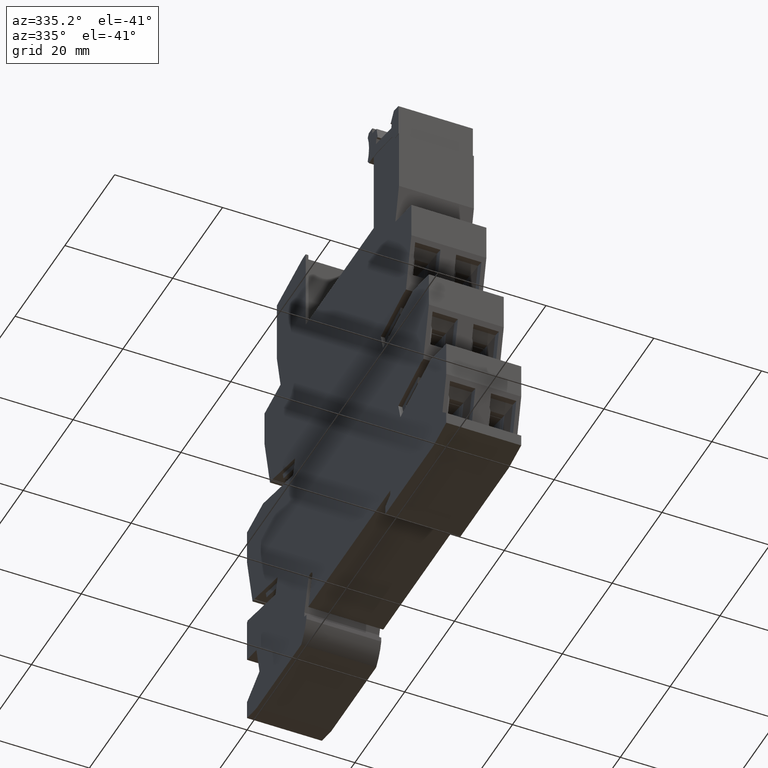
[diagram: clean part render]
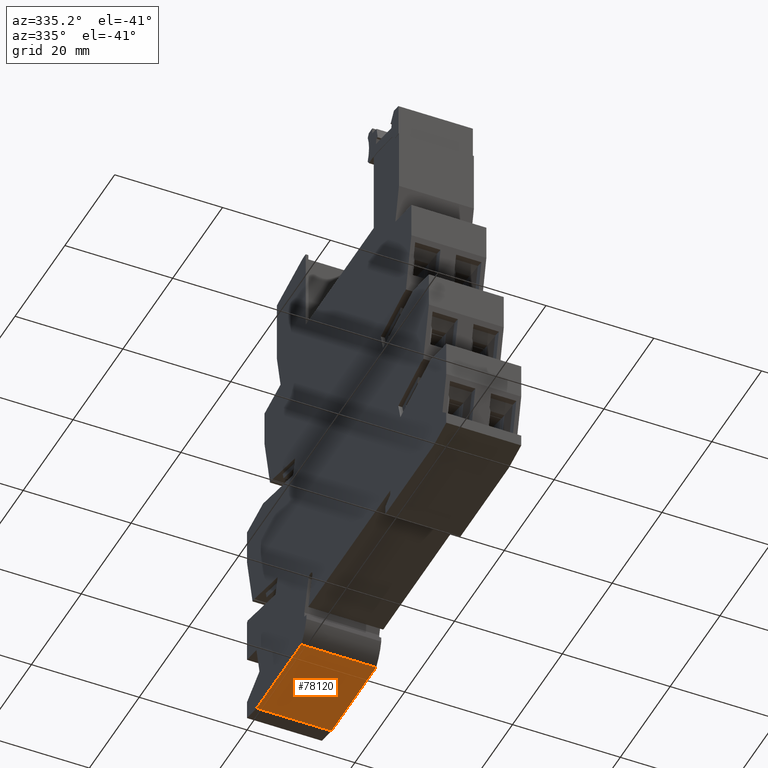
[diagram: same view with one face highlighted and labeled with its STEP entity id]
A machine part, auxiliary view. The second image highlights one B-rep face of the part: STEP entity #78120.
In plain terms, the highlighted planar face has unit normal (0, -0, 1).
Its self-contained STEP definition (entity closure, byte-faithful):
#4850=CARTESIAN_POINT('',(-34.8928400000569,-8.99999999999097,
-14.7000000000029));
#4860=VERTEX_POINT('',#4850);
#4890=CARTESIAN_POINT('',(13.9023606813607,-8.99999999999405,
-14.7000000000029));
#4900=DIRECTION('',(1.,-6.29277373059034E-14,-1.89326617253043E-28));
#4910=VECTOR('',#4900,1.);
#4920=LINE('',#4890,#4910);
#4930=CARTESIAN_POINT('',(-16.909983417643,-8.99999999999255,
-14.7000000000025));
#4940=VERTEX_POINT('',#4930);
#4950=EDGE_CURVE('',#4860,#4940,#4920,.T.);
#9440=CARTESIAN_POINT('',(-16.9099834176435,-8.99999999999211,
-0.800000000002451));
#9450=VERTEX_POINT('',#9440);
#9480=CARTESIAN_POINT('',(13.9023606813607,-8.99999999999405,
-0.800000000002909));
#9490=DIRECTION('',(1.,-6.29277373059034E-14,-1.89326617253043E-28));
#9500=VECTOR('',#9490,1.);
#9510=LINE('',#9480,#9500);
#9520=CARTESIAN_POINT('',(-34.8928400000569,-8.99999999999097,
-0.800000000002909));
#9530=VERTEX_POINT('',#9520);
#9540=EDGE_CURVE('',#9530,#9450,#9510,.T.);
#77780=CARTESIAN_POINT('',(-16.9099834176426,-8.99999999999211,
-14.7000000000045));
#77790=DIRECTION('',(-6.27941947176454E-14,4.3091449959983E-27,1.));
#77800=VECTOR('',#77790,1.);
#77810=LINE('',#77780,#77800);
#77820=EDGE_CURVE('',#4940,#9450,#77810,.T.);
#77960=CARTESIAN_POINT('',(-34.892840000056,-8.99999999999097,
-14.7000000000056));
#77970=DIRECTION('',(6.29277373059034E-14,1.,-3.57648406470557E-28));
#77980=DIRECTION('',(-1.,6.29277373059034E-14,-6.27941947176454E-14));
#77990=AXIS2_PLACEMENT_3D('',#77960,#77970,#77980);
#78000=PLANE('',#77990);
#78010=ORIENTED_EDGE('',*,*,#4950,.T.);
#78020=CARTESIAN_POINT('',(-34.8928400000569,-8.99999999999098,
-0.800000000002907));
#78030=DIRECTION('',(-3.02922587604869E-28,-3.5764840647054E-28,-1.));
#78040=VECTOR('',#78030,1.);
#78050=LINE('',#78020,#78040);
#78060=EDGE_CURVE('',#9530,#4860,#78050,.T.);
#78070=ORIENTED_EDGE('',*,*,#78060,.T.);
#78080=ORIENTED_EDGE('',*,*,#9540,.F.);
#78090=ORIENTED_EDGE('',*,*,#77820,.T.);
#78100=EDGE_LOOP('',(#78090,#78080,#78070,#78010));
#78110=FACE_OUTER_BOUND('',#78100,.T.);
#78120=ADVANCED_FACE('',(#78110),#78000,.F.);